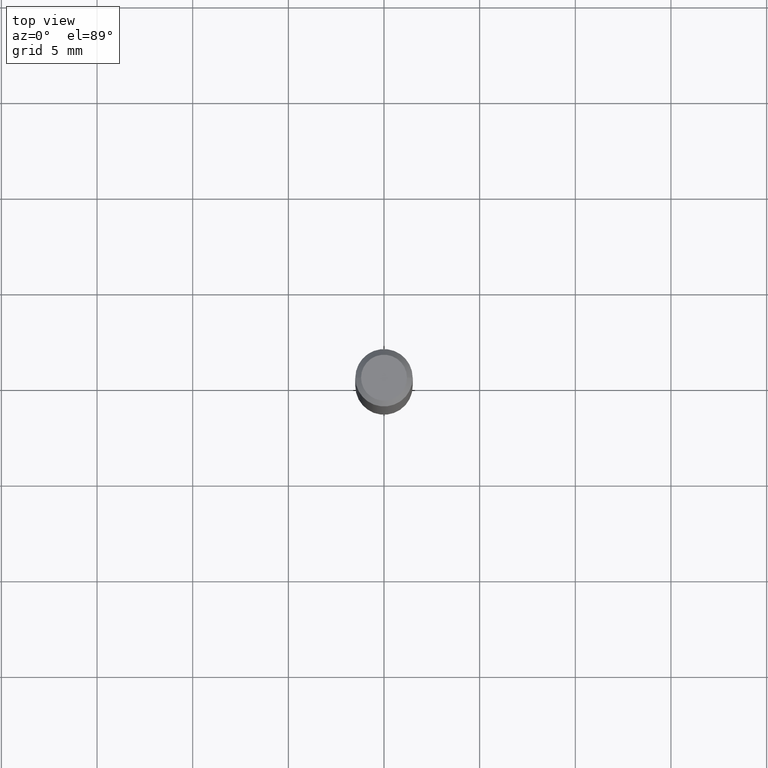
[diagram: clean part render]
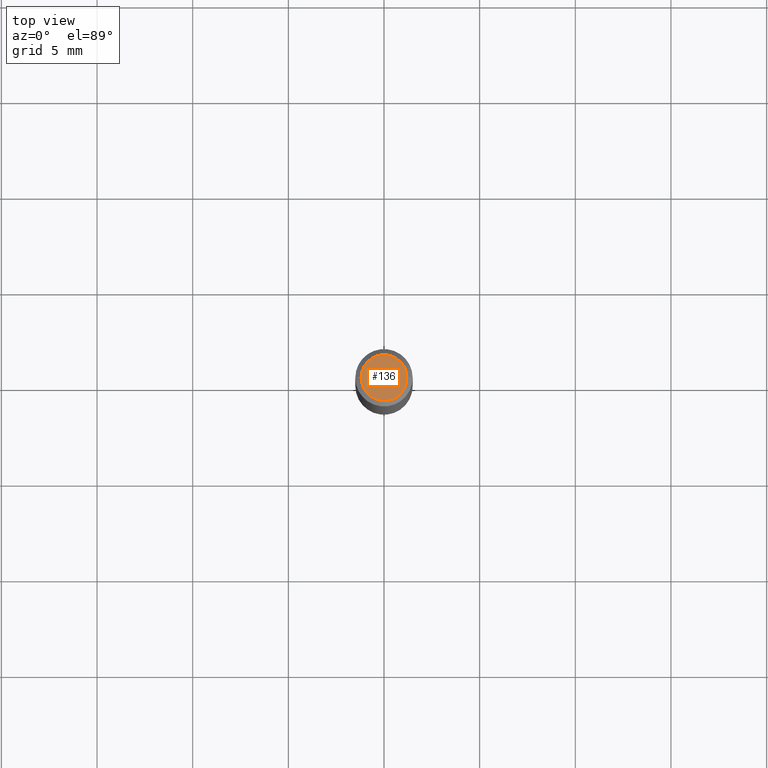
[diagram: same view with one face highlighted and labeled with its STEP entity id]
A machine part, top view. The second image highlights one B-rep face of the part: STEP entity #136.
In plain terms, the highlighted planar face has unit normal (0, -0, -1).
Its self-contained STEP definition (entity closure, byte-faithful):
#21 = PLANE ( 'NONE',  #89 ) ;
#36 = AXIS2_PLACEMENT_3D ( 'NONE', #425, #416, #456 ) ;
#45 = DIRECTION ( 'NONE',  ( -2.445468806185136597E-29, 3.491481338843145583E-15, 1.000000000000000000 ) ) ;
#86 = CARTESIAN_POINT ( 'NONE',  ( -0.04724000000000000421, 3.504923541997677355E-16, -3.380025165670481712E-19 ) ) ;
#89 = AXIS2_PLACEMENT_3D ( 'NONE', #215, #168, #246 ) ;
#95 = EDGE_CURVE ( 'NONE', #441, #346, #116, .T. ) ;
#100 = ORIENTED_EDGE ( 'NONE', *, *, #95, .T. ) ;
#116 = CIRCLE ( 'NONE', #147, 0.04724000000000000421 ) ;
#133 = FACE_OUTER_BOUND ( 'NONE', #409, .T. ) ;
#136 = ADVANCED_FACE ( 'NONE', ( #133 ), #21, .F. ) ;
#147 = AXIS2_PLACEMENT_3D ( 'NONE', #461, #45, #255 ) ;
#168 = DIRECTION ( 'NONE',  ( 2.438088387897960049E-29, -3.491481338843145188E-15, -1.000000000000000000 ) ) ;
#215 = CARTESIAN_POINT ( 'NONE',  ( 4.132873053354867254E-48, -5.900647395337818946E-34, -1.690012582823346072E-19 ) ) ;
#246 = DIRECTION ( 'NONE',  ( -1.000000000000000000, 6.982962677686265922E-15, -4.876176775795935793E-29 ) ) ;
#255 = DIRECTION ( 'NONE',  ( 1.000000000000000000, -6.982962677686266711E-15, 4.876185090822587894E-29 ) ) ;
#312 = CARTESIAN_POINT ( 'NONE',  ( 0.04724000000000000421, -3.852183633974369345E-16, -3.380025165621689721E-19 ) ) ;
#327 = CIRCLE ( 'NONE', #36, 0.04724000000000000421 ) ;
#331 = ORIENTED_EDGE ( 'NONE', *, *, #442, .T. ) ;
#346 = VERTEX_POINT ( 'NONE', #86 ) ;
#409 = EDGE_LOOP ( 'NONE', ( #331, #100 ) ) ;
#416 = DIRECTION ( 'NONE',  ( -2.445468806185136597E-29, 3.491481338843145583E-15, 1.000000000000000000 ) ) ;
#425 = CARTESIAN_POINT ( 'NONE',  ( 8.265746106709734507E-48, -1.180129479067563789E-33, -3.380025165646692144E-19 ) ) ;
#441 = VERTEX_POINT ( 'NONE', #312 ) ;
#442 = EDGE_CURVE ( 'NONE', #346, #441, #327, .T. ) ;
#456 = DIRECTION ( 'NONE',  ( 1.000000000000000000, -6.982962677686266711E-15, 4.876185090822587894E-29 ) ) ;
#461 = CARTESIAN_POINT ( 'NONE',  ( 8.265746106709734507E-48, -1.180129479067563789E-33, -3.380025165646692144E-19 ) ) ;